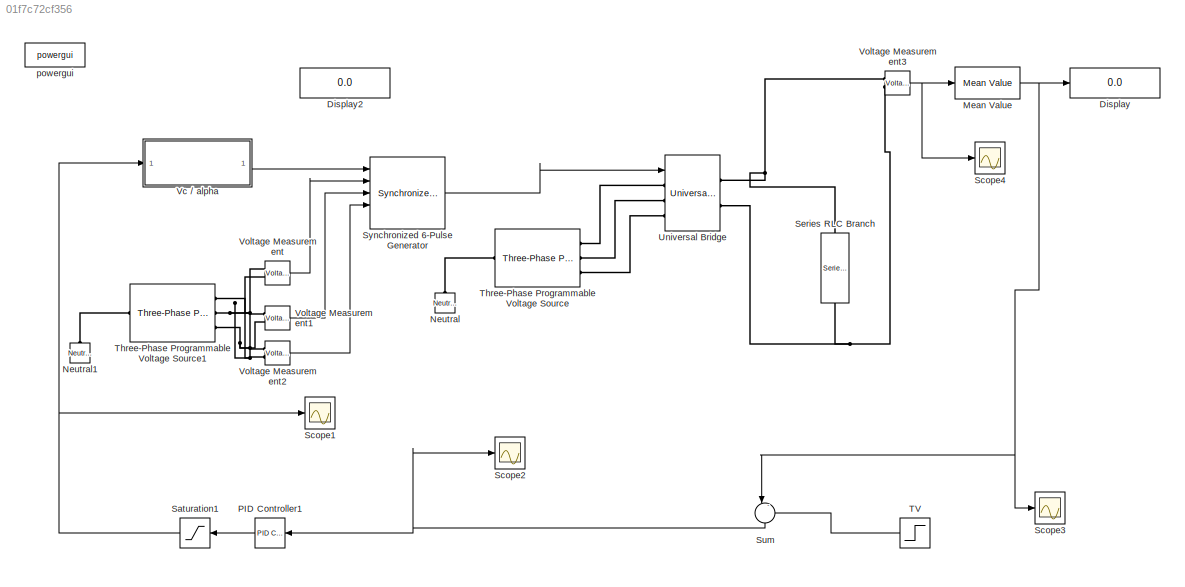
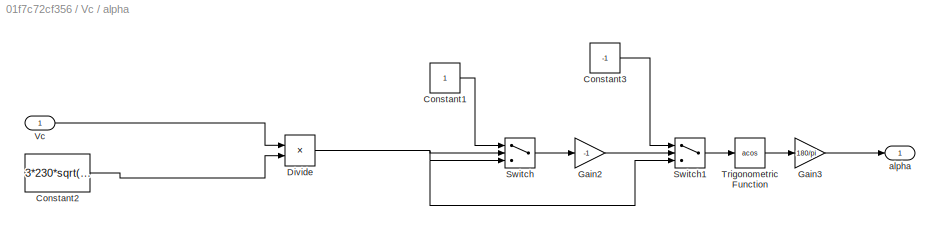
MODEL slx_01f7c72cf356
KIND model
BLOCK [Display] Display
  Decimation = 1
  Ports = [1]
BLOCK [Display] Display2
  Decimation = 1
  Ports = [1]
BLOCK [Reference] Mean Value  REF=powerlib_extras/Measurements/Mean Value
  Period = 1/50
  Ports = [1, 1]
  SourceBlock = powerlib_extras/Measurements/Mean Value
  SourceType = Mean value
BLOCK [Reference] Neutral  REF=powerlib/Elements/Neutral
  AttributesFormatString = node %<NodeNumber>
  LConnTagsString = a
  NodeNumber = 10
  Ports = [0, 0, 0, 0, 0, 1]
  SourceBlock = powerlib/Elements/Neutral
  SourceType = Neutral
BLOCK [Reference] Neutral1  REF=powerlib/Elements/Neutral
  AttributesFormatString = node %<NodeNumber>
  LConnTagsString = a
  NodeNumber = 10
  Ports = [0, 0, 0, 0, 0, 1]
  SourceBlock = powerlib/Elements/Neutral
  SourceType = Neutral
BLOCK [Reference] PID Controller1  REF=simulink_need_slupdate/PID Controller
  D = 0
  I = 20
  P = 2
  Ports = [1, 1]
  SourceBlock = simulink_need_slupdate/PID Controller
  SourceType = PID Controller
BLOCK [Saturate] Saturation1
  InputPortMap = u0
  LowerLimit = -3*1.414*230/pi
  Ports = [1, 1]
  UpperLimit = 3*1.414*230/pi
BLOCK [Scope] Scope1
  DataFormat = StructureWithTime
  Floating = off
  LimitDataPoints = off
  NumInputPorts = 1
  Ports = [1]
  SampleTime = 0
  ShowLegends = off
  TimeRange = 2
  YMax = 300
  YMin = 260
BLOCK [Scope] Scope2
  DataFormat = StructureWithTime
  Floating = off
  LimitDataPoints = off
  NumInputPorts = 1
  Ports = [1]
  SampleTime = 0
  SaveName = ScopeData1
  ShowLegends = off
  TimeRange = 2
  YMax = 16
  YMin = 0
BLOCK [Scope] Scope3
  DataFormat = StructureWithTime
  Floating = off
  LimitDataPoints = off
  NumInputPorts = 1
  Ports = [1]
  SampleTime = 0
  SaveName = ScopeData2
  ShowLegends = off
  TimeRange = 2
  YMax = 522.5
  YMin = 485
BLOCK [Scope] Scope4
  DataFormat = StructureWithTime
  Floating = off
  LimitDataPoints = off
  NumInputPorts = 1
  Ports = [1]
  SampleTime = 0
  SaveName = ScopeData3
  ShowLegends = off
  TimeRange = 2
  YMax = 600
  YMin = -400
BLOCK [Reference] Series RLC Branch  REF=powerlib/Elements/Series RLC Branch
  BranchType = RL
  Capacitance = 1e-6
  Inductance = 10
  InitialCurrent = 0
  InitialVoltage = 0
  LConnTagsString = __new0
  Measurements = None
  Ports = [0, 0, 0, 0, 0, 1, 1]
  RConnTagsString = __new0
  Resistance = 10
  SetiL0 = off
  Setx0 = off
  SourceBlock = powerlib/Elements/Series RLC Branch
  SourceType = Series RLC Branch
BLOCK [Sum] Sum
  IconShape = round
  InputSameDT = off
  Inputs = |-+
  OutDataTypeStr = Inherit: Inherit via internal rule
  Ports = [2, 1]
  SaturateOnIntegerOverflow = off
BLOCK [Reference] Synchronized 6-Pulse Generator  REF=powerlib_extras/Control 
Blocks/Synchronized
6-Pulse Generator
  Double_Pulse = off
  Ports = [5, 1]
  SourceBlock = powerlib_extras/Control \nBlocks/Synchronized\n6-Pulse Generator
  SourceType = Synchronized 6-pulse generator
  freq = 50
  pwidth = 10
BLOCK [Step] TV
  After = 200
  Before = 500
  SampleTime = 0
  Time = 5
BLOCK [Reference] Three-Phase Programmable Voltage Source  REF=powerlib/Electrical
Sources/Three-Phase
Programmable
Voltage Source
  Amplitudes = [1 0.8 1.2 1.0]
  BusType = swing
  HarmonicA = [3 0.2 -25 0]
  HarmonicB = [2 0.15 35 2]
  HarmonicGeneration = off
  Ports = [0, 0, 0, 0, 0, 1, 3]
  PositiveSequence = [400  0 50]
  Pref = 0
  Qmax = inf
  Qmin = -inf
  Qref = 0
  SourceBlock = powerlib/Electrical\nSources/Three-Phase\nProgrammable\nVoltage Source
  SourceType = Three-Phase Programmable Voltage Source
  TimeValues = [0 0.1 0.15 0.2]
  Timing = [0.05  3]
  VariationEntity = None
  VariationFrequency = 2
  VariationMagnitude = 0.3
  VariationPhaseA = off
  VariationRate = 10
  VariationStep = 0.5
  VariationTiming = [1 2]
  VariationType = Step
  VariationTypeAlt = Step
BLOCK [Reference] Three-Phase Programmable Voltage Source1  REF=powerlib/Electrical
Sources/Three-Phase
Programmable
Voltage Source
  Amplitudes = [1 0.8 1.2 1.0]
  BusType = swing
  HarmonicA = [3 0.2 -25 0]
  HarmonicB = [2 0.15 35 2]
  HarmonicGeneration = off
  Ports = [0, 0, 0, 0, 0, 1, 3]
  PositiveSequence = [1  0 50]
  Pref = 0
  Qmax = inf
  Qmin = -inf
  Qref = 0
  SourceBlock = powerlib/Electrical\nSources/Three-Phase\nProgrammable\nVoltage Source
  SourceType = Three-Phase Programmable Voltage Source
  TimeValues = [0 0.1 0.15 0.2]
  Timing = [0.05  3]
  VariationEntity = None
  VariationFrequency = 2
  VariationMagnitude = 0.3
  VariationPhaseA = off
  VariationRate = 10
  VariationStep = 0.5
  VariationTiming = [1 2]
  VariationType = Step
  VariationTypeAlt = Step
BLOCK [Reference] Universal Bridge  REF=powerlib/Power
Electronics/Universal Bridge
  Arms = 3
  Device = Thyristors
  ForwardVoltage = 0
  ForwardVoltages = [  0  0  ]
  GTOparameters = [ 10e-6 , 20e-6 ]
  IGBTparameters = [ 1e-6 , 2e-6 ]
  Lon = 0
  Measurements = None
  Measurements_2 = None
  Ports = [1, 0, 0, 0, 0, 3, 2]
  Ron = 1e-3
  SnubberCapacitance = inf
  SnubberResistance = 1e5
  SourceBlock = powerlib/Power\nElectronics/Universal Bridge
  SourceType = Universal Bridge
  converterType = Rectifier
BLOCK [SubSystem] Vc   //  alpha 
  Ports = [1, 1]
  RequestExecContextInheritance = off
  TreatAsAtomicUnit = on
BLOCK [Constant] Vc   //  alpha /Constant1
BLOCK [Constant] Vc   //  alpha /Constant2
  Value = 3*230*sqrt(2)/pi
BLOCK [Constant] Vc   //  alpha /Constant3
  Value = -1
BLOCK [Product] Vc   //  alpha /Divide
  InputSameDT = off
  Inputs = */
  OutDataTypeStr = Inherit: Inherit via internal rule
  Ports = [2, 1]
  RndMeth = Floor
  SaturateOnIntegerOverflow = off
BLOCK [Gain] Vc   //  alpha /Gain2
  Gain = -1
  OutDataTypeStr = Inherit: Inherit via internal rule
  ParamDataTypeStr = Inherit: Inherit via internal rule
  SaturateOnIntegerOverflow = off
BLOCK [Gain] Vc   //  alpha /Gain3
  Gain = 180/pi
  OutDataTypeStr = Inherit: Inherit via internal rule
  ParamDataTypeStr = Inherit: Inherit via internal rule
  SaturateOnIntegerOverflow = off
BLOCK [Switch] Vc   //  alpha /Switch
  InputSameDT = off
  SaturateOnIntegerOverflow = off
  Threshold = 1
BLOCK [Switch] Vc   //  alpha /Switch1
  InputSameDT = off
  SaturateOnIntegerOverflow = off
  Threshold = 1
BLOCK [Trigonometry] Vc   //  alpha /Trigonometric Function
  Operator = acos
  Ports = [1, 1]
BLOCK [Inport] Vc   //  alpha /Vc
  IconDisplay = Port number
BLOCK [Outport] Vc   //  alpha /alpha
  IconDisplay = Port number
BLOCK [Reference] Voltage Measurement  REF=powerlib/Measurements/Voltage Measurement
  OutputType = Complex
  PSBequivalent = 0
  PhasorSimulation = off
  Ports = [0, 1, 0, 0, 0, 2]
  SourceBlock = powerlib/Measurements/Voltage Measurement
  SourceType = Voltage Measurement
BLOCK [Reference] Voltage Measurement1  REF=powerlib/Measurements/Voltage Measurement
  OutputType = Complex
  PSBequivalent = 0
  PhasorSimulation = off
  Ports = [0, 1, 0, 0, 0, 2]
  SourceBlock = powerlib/Measurements/Voltage Measurement
  SourceType = Voltage Measurement
BLOCK [Reference] Voltage Measurement2  REF=powerlib/Measurements/Voltage Measurement
  OutputType = Complex
  PSBequivalent = 0
  PhasorSimulation = off
  Ports = [0, 1, 0, 0, 0, 2]
  SourceBlock = powerlib/Measurements/Voltage Measurement
  SourceType = Voltage Measurement
BLOCK [Reference] Voltage Measurement3  REF=powerlib/Measurements/Voltage Measurement
  OutputType = Complex
  PSBequivalent = 0
  PhasorSimulation = off
  Ports = [0, 1, 0, 0, 0, 2]
  SourceBlock = powerlib/Measurements/Voltage Measurement
  SourceType = Voltage Measurement
BLOCK [Reference] powergui  REF=powerlib/powergui
  DisableRonSwitches = off
  DisableSnubberDevices = off
  DisableVfSwitches = off
  DisplayEquations = off
  DisplayStyle = 1
  EnableUseOfTLC = off
  ErrMax = 1e-4
  Frange = [0:2:500]
  FreqAxis = off
  FunctionMessages = off
  HookPort = off
  Interpol = off
  Iterations = 50
  MaxFrequency = 1000
  Pbase = 100e6
  Ports = []
  ResistiveCurrentMeasurement = off
  RestoreLinks = warning
  RmsSteady = 1
  SPID = off
  SampleTime = 50e-6
  ShowGrid = off
  SolverType = Tustin
  SourceBlock = powerlib/powergui
  SourceType = PSB option menu block
  StartTime = 0.0
  SwTol = 0
  Ts = 0
  UnitsV = kV
  UnitsW = MW
  UserDataPersistent = on
  Xlog = on
  Ylog = off
  ZoomFFT = on
  cycles = 1
  display = off
  echomessages = off
  frequency = 60
  frequencyindice = 50
  frequencyindicesteady = 1
  fundamental = 60
  methode = off
  save = off
  structure = 0
  variable = ZData
  x0status = blocks
NET Mean Value:1 -> Display:1, Scope3:1, Sum:1
LINE PID Controller1:1 -> Saturation1:1
NET Saturation1:1 -> Scope1:1, Vc   //  alpha :1
NET Sum:1 -> PID Controller1:1, Scope2:1
LINE Synchronized 6-Pulse Generator:1 -> Universal Bridge:1
LINE TV:1 -> Sum:2
LINE Vc   //  alpha /Constant1:1 -> Vc   //  alpha /Switch:1
LINE Vc   //  alpha /Constant2:1 -> Vc   //  alpha /Divide:2
LINE Vc   //  alpha /Constant3:1 -> Vc   //  alpha /Switch1:1
NET Vc   //  alpha /Divide:1 -> Vc   //  alpha /Switch1:3, Vc   //  alpha /Switch:2, Vc   //  alpha /Switch:3
LINE Vc   //  alpha /Gain2:1 -> Vc   //  alpha /Switch1:2
LINE Vc   //  alpha /Gain3:1 -> Vc   //  alpha /alpha:1
LINE Vc   //  alpha /Switch1:1 -> Vc   //  alpha /Trigonometric Function:1
LINE Vc   //  alpha /Switch:1 -> Vc   //  alpha /Gain2:1
LINE Vc   //  alpha /Trigonometric Function:1 -> Vc   //  alpha /Gain3:1
LINE Vc   //  alpha /Vc:1 -> Vc   //  alpha /Divide:1
LINE Vc   //  alpha :1 -> Synchronized 6-Pulse Generator:1
LINE Voltage Measurement1:1 -> Synchronized 6-Pulse Generator:3
LINE Voltage Measurement2:1 -> Synchronized 6-Pulse Generator:4
NET Voltage Measurement3:1 -> Mean Value:1, Scope4:1
LINE Voltage Measurement:1 -> Synchronized 6-Pulse Generator:2
PLINE Neutral1:LConn1 -- Three-Phase Programmable Voltage Source1:LConn1
PLINE Neutral:LConn1 -- Three-Phase Programmable Voltage Source:LConn1
PNET net1: Series RLC Branch:LConn1 -- Universal Bridge:RConn1 -- Voltage Measurement3:LConn1
PNET net2: Series RLC Branch:RConn1 -- Universal Bridge:RConn2 -- Voltage Measurement3:LConn2
PNET net3: Three-Phase Programmable Voltage Source1:RConn1 -- Voltage Measurement2:LConn2 -- Voltage Measurement:LConn1
PNET net4: Three-Phase Programmable Voltage Source1:RConn2 -- Voltage Measurement1:LConn1 -- Voltage Measurement:LConn2
PNET net5: Three-Phase Programmable Voltage Source1:RConn3 -- Voltage Measurement1:LConn2 -- Voltage Measurement2:LConn1
PLINE Three-Phase Programmable Voltage Source:RConn1 -- Universal Bridge:LConn1
PLINE Three-Phase Programmable Voltage Source:RConn2 -- Universal Bridge:LConn2
PLINE Three-Phase Programmable Voltage Source:RConn3 -- Universal Bridge:LConn3
note: NET lines group one-source signal fan-out (src -> all destinations, sorted); 1:1 wires keep LINE; PNET lines group multi-terminal physical nets as a canonical sorted terminal list (undirected conserving connections); 2-terminal nets keep the pairwise PLINE form
